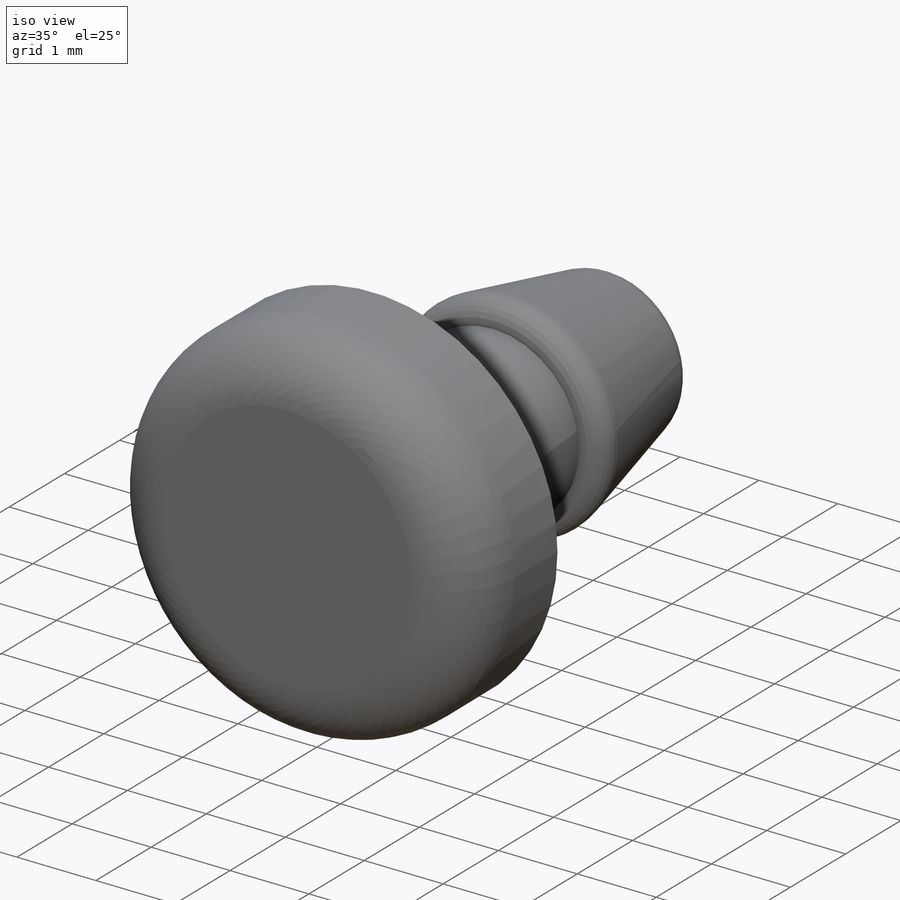
[diagram: iso view]
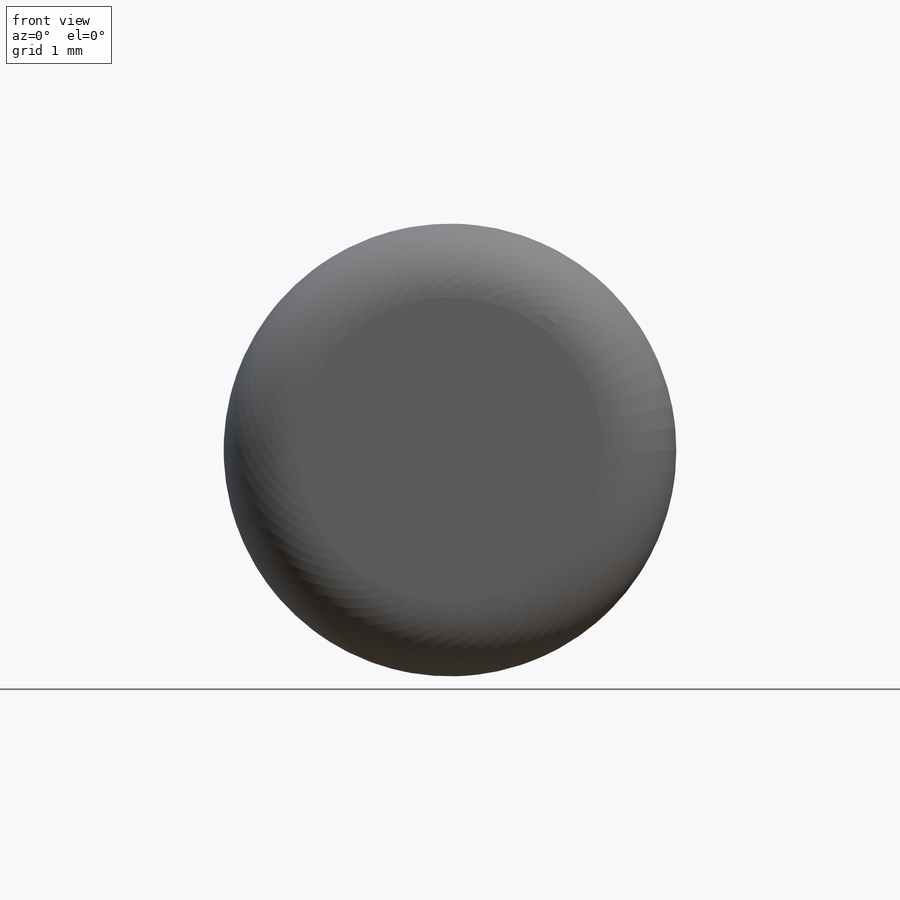
[diagram: front view]
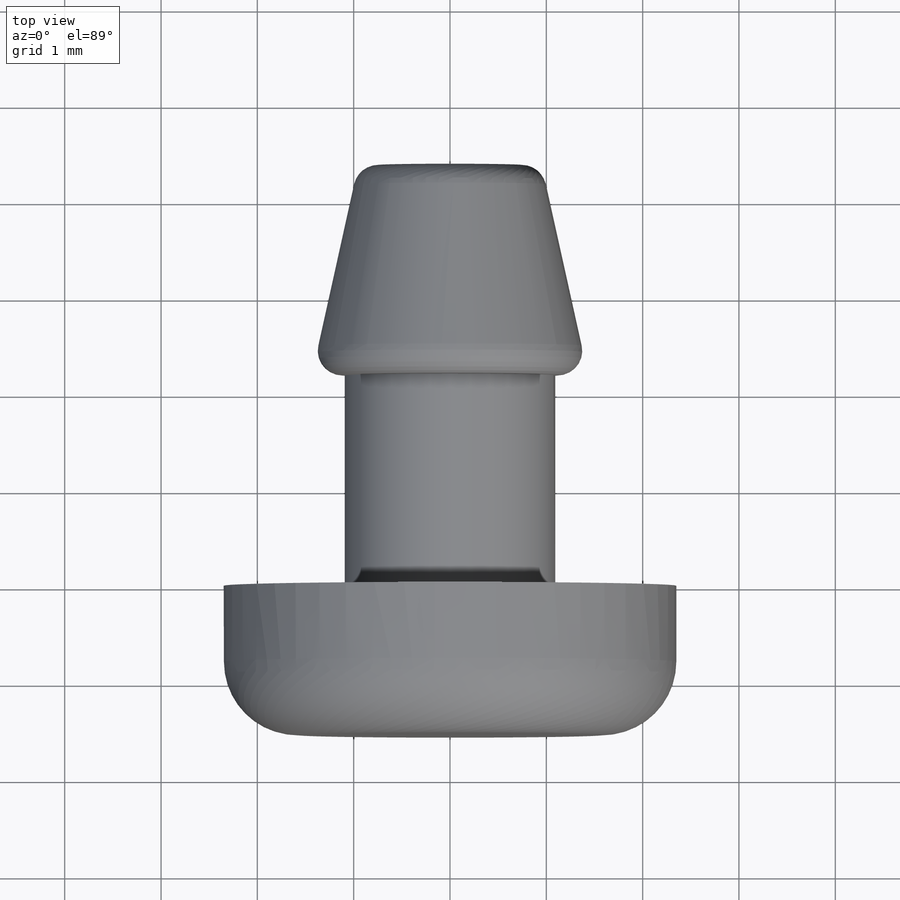
[diagram: top view]
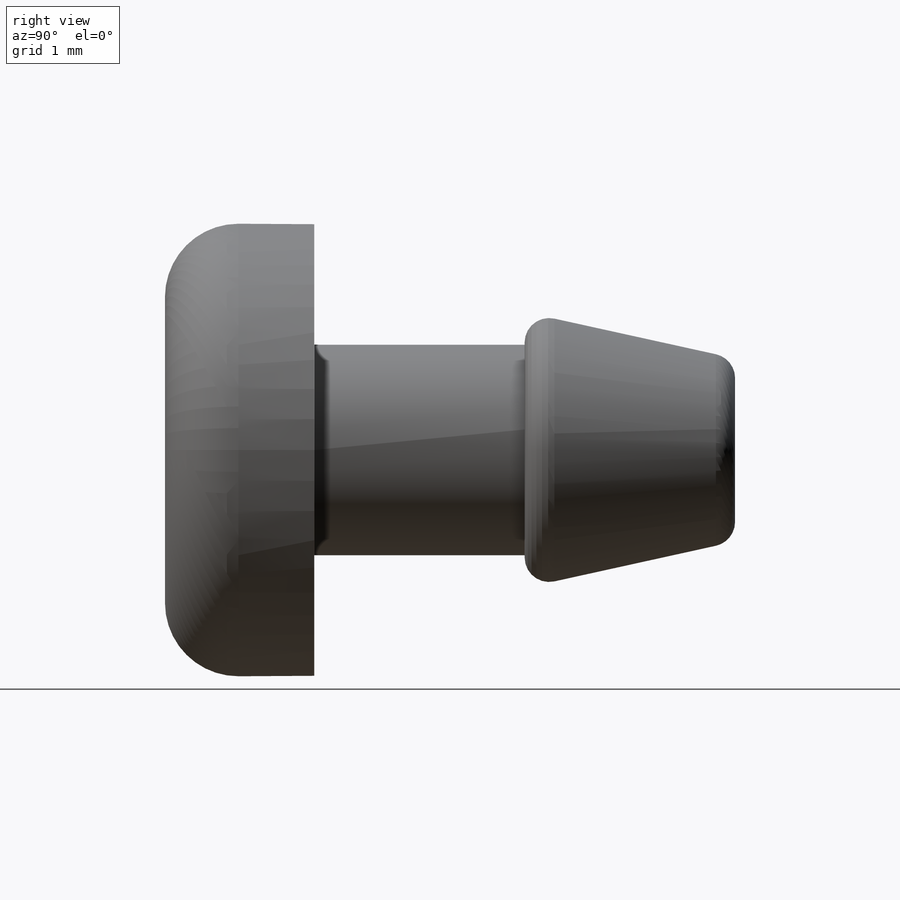
[diagram: right view]
SOLIDWORKS PART (.sldprt)
format: sldprt  version: not decoded by parser v0  size: 230,912 bytes
history: native  units: mm
features: sketch x3, extrude x3, fillet x2, material x1 (+16 scaffold rows collapsed)
feature tree (25):
  scaffold x16  (default folders/planes/origin — collapsed)
  material  "Nylon 101"
  sketch  "Sketch1"  dims[D1=4.699mm]
  extrude  "Extrude1"  Depth=1.5494mm
  sketch  "Sketch2"  dims[D1=2.1844mm]
  extrude  "Extrude2"  Depth=2.1844mm
  sketch  "Sketch3"  dims[D1=2.8702mm]
  extrude  "Extrude3"  Depth=2.1844mm
  fillet  "Fillet1"  Radius=0.762mm
  fillet  "Fillet2"  Radius=0.254mm
decode coverage: 8 of 8 modeling features carry decoded parameters
note: suppression state not decoded; provenance and decode notes live in map.json
